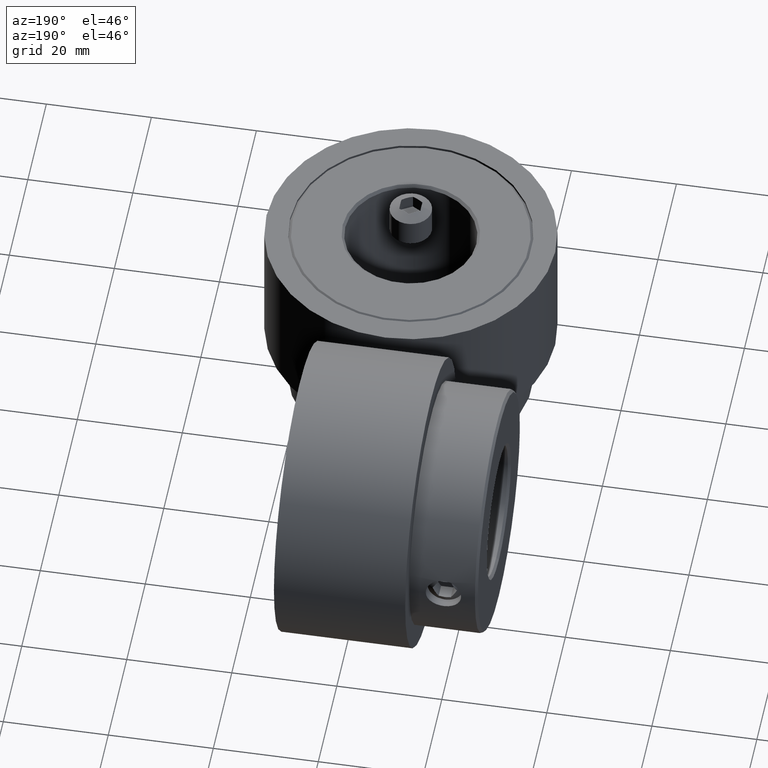
[diagram: clean part render]
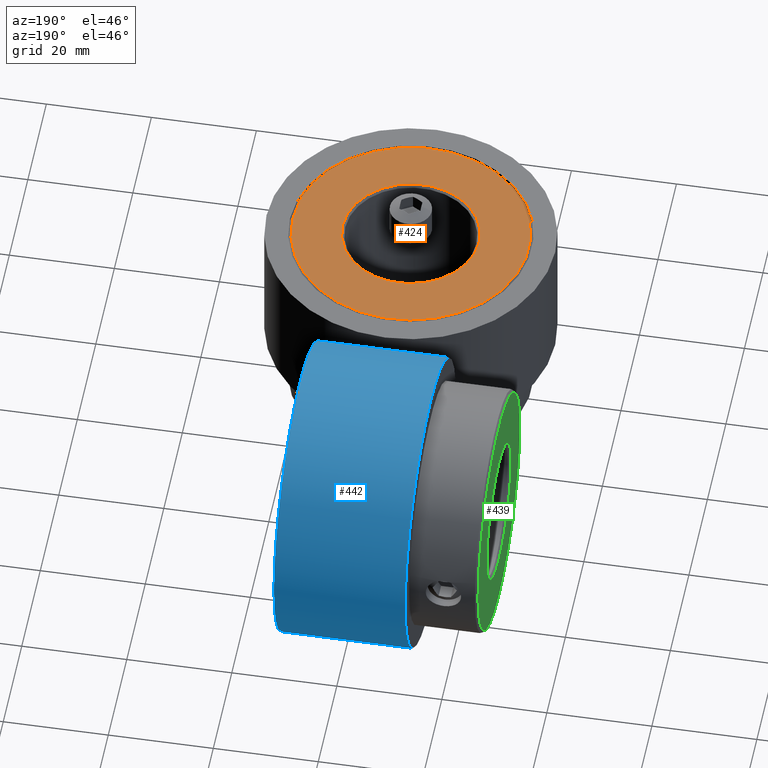
[diagram: same view with three faces highlighted in distinct colors, each labeled with its STEP entity id]
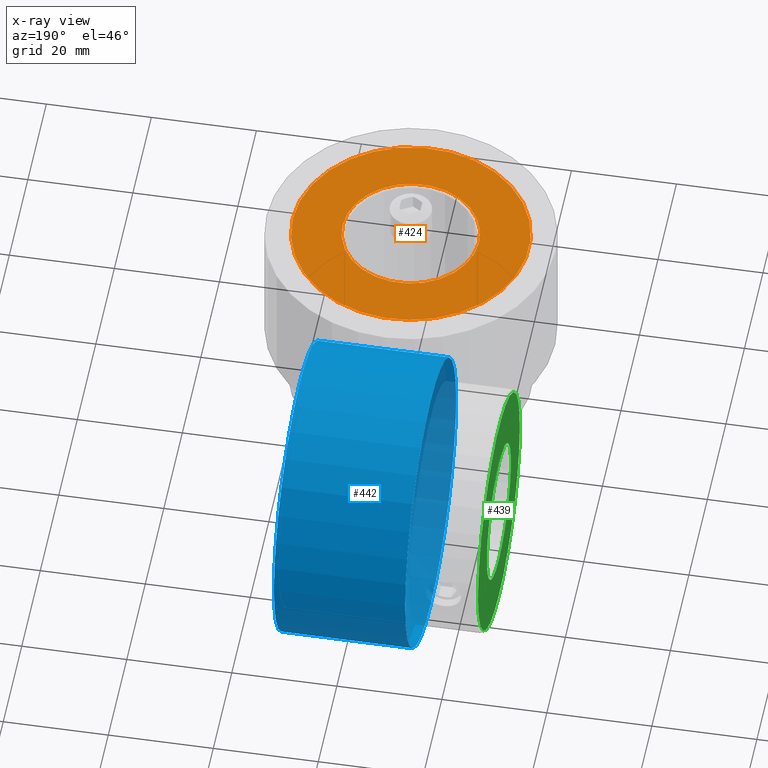
[diagram: x-ray of the same camera — body ghosted, the three highlighted faces saturated]
A machine part, auxiliary view with three faces highlighted in distinct colors.
The next image is the same camera in x-ray (body ghosted, the three faces saturated) — at least one of them is partly hidden behind the body in this view.
Their STEP definitions:

[orange] entity #424 — the highlighted planar face has unit normal (0, 0, 1).
#424 = ADVANCED_FACE( '', ( #523, #524 ), #525, .T. );
#523 = FACE_OUTER_BOUND( '', #705, .T. );
#524 = FACE_BOUND( '', #706, .T. );
#525 = PLANE( '', #707 );
#705 = EDGE_LOOP( '', ( #907 ) );
#706 = EDGE_LOOP( '', ( #908 ) );
#707 = AXIS2_PLACEMENT_3D( '', #909, #910, #911 );
#907 = ORIENTED_EDGE( '', *, *, #1261, .T. );
#908 = ORIENTED_EDGE( '', *, *, #1260, .T. );
#909 = CARTESIAN_POINT( '', ( 0.000000000000000, 0.000000000000000, 0.000000000000000 ) );
#910 = DIRECTION( '', ( 0.000000000000000, 0.000000000000000, 1.00000000000000 ) );
#911 = DIRECTION( '', ( 1.00000000000000, 0.000000000000000, 0.000000000000000 ) );
#1260 = EDGE_CURVE( '', #1373, #1373, #1374, .F. );
#1261 = EDGE_CURVE( '', #1375, #1375, #1376, .T. );
#1373 = VERTEX_POINT( '', #1809 );
#1374 = CIRCLE( '', #1810, 13.0000000000000 );
#1375 = VERTEX_POINT( '', #1811 );
#1376 = CIRCLE( '', #1812, 22.5000000000000 );
#1809 = CARTESIAN_POINT( '', ( 13.0000000000000, 0.000000000000000, 0.000000000000000 ) );
#1810 = AXIS2_PLACEMENT_3D( '', #2406, #2407, #2408 );
#1811 = CARTESIAN_POINT( '', ( 22.5000000000000, 0.000000000000000, 0.000000000000000 ) );
#1812 = AXIS2_PLACEMENT_3D( '', #2409, #2410, #2411 );
#2406 = CARTESIAN_POINT( '', ( 0.000000000000000, 0.000000000000000, 0.000000000000000 ) );
#2407 = DIRECTION( '', ( 0.000000000000000, 0.000000000000000, 1.00000000000000 ) );
#2408 = DIRECTION( '', ( 1.00000000000000, 0.000000000000000, -0.000000000000000 ) );
#2409 = CARTESIAN_POINT( '', ( 0.000000000000000, 0.000000000000000, 0.000000000000000 ) );
#2410 = DIRECTION( '', ( 0.000000000000000, 0.000000000000000, 1.00000000000000 ) );
#2411 = DIRECTION( '', ( 1.00000000000000, 0.000000000000000, -0.000000000000000 ) );

[blue] entity #442 — the highlighted cylindrical surface (bore or boss wall) has radius 27.5 mm, axis along (-1, -0, -0).
#442 = ADVANCED_FACE( '', ( #581, #582 ), #583, .T. );
#581 = FACE_OUTER_BOUND( '', #763, .T. );
#582 = FACE_OUTER_BOUND( '', #764, .T. );
#583 = CYLINDRICAL_SURFACE( '', #765, 27.5000000000000 );
#763 = EDGE_LOOP( '', ( #1001 ) );
#764 = EDGE_LOOP( '', ( #1002 ) );
#765 = AXIS2_PLACEMENT_3D( '', #1003, #1004, #1005 );
#1001 = ORIENTED_EDGE( '', *, *, #1281, .T. );
#1002 = ORIENTED_EDGE( '', *, *, #1282, .F. );
#1003 = CARTESIAN_POINT( '', ( -14.0000000000000, 58.0000000000000, -11.0000000000000 ) );
#1004 = DIRECTION( '', ( -1.00000000000000, -0.000000000000000, -6.12323399573677E-017 ) );
#1005 = DIRECTION( '', ( 6.12323399573677E-017, 0.000000000000000, -1.00000000000000 ) );
#1281 = EDGE_CURVE( '', #1415, #1415, #1416, .T. );
#1282 = EDGE_CURVE( '', #1417, #1417, #1418, .T. );
#1415 = VERTEX_POINT( '', #2107 );
#1416 = CIRCLE( '', #2108, 27.5000000000000 );
#1417 = VERTEX_POINT( '', #2109 );
#1418 = CIRCLE( '', #2110, 27.5000000000000 );
#2107 = CARTESIAN_POINT( '', ( -14.0000000000000, 58.0000000000000, -38.5000000000000 ) );
#2108 = AXIS2_PLACEMENT_3D( '', #2457, #2458, #2459 );
#2109 = CARTESIAN_POINT( '', ( 11.0000000000000, 58.0000000000000, -38.5000000000000 ) );
#2110 = AXIS2_PLACEMENT_3D( '', #2460, #2461, #2462 );
#2457 = CARTESIAN_POINT( '', ( -14.0000000000000, 58.0000000000000, -11.0000000000000 ) );
#2458 = DIRECTION( '', ( 1.00000000000000, 0.000000000000000, 6.12323399573677E-017 ) );
#2459 = DIRECTION( '', ( 6.12323399573677E-017, 0.000000000000000, -1.00000000000000 ) );
#2460 = CARTESIAN_POINT( '', ( 11.0000000000000, 58.0000000000000, -11.0000000000000 ) );
#2461 = DIRECTION( '', ( 1.00000000000000, 0.000000000000000, 6.12323399573677E-017 ) );
#2462 = DIRECTION( '', ( 6.12323399573677E-017, 0.000000000000000, -1.00000000000000 ) );

[green] entity #439 — the highlighted planar face has unit normal (1, 0, 0).
#439 = ADVANCED_FACE( '', ( #572, #573 ), #574, .F. );
#572 = FACE_OUTER_BOUND( '', #754, .T. );
#573 = FACE_BOUND( '', #755, .T. );
#574 = PLANE( '', #756 );
#754 = EDGE_LOOP( '', ( #986 ) );
#755 = EDGE_LOOP( '', ( #987 ) );
#756 = AXIS2_PLACEMENT_3D( '', #988, #989, #990 );
#986 = ORIENTED_EDGE( '', *, *, #1271, .T. );
#987 = ORIENTED_EDGE( '', *, *, #1280, .T. );
#988 = CARTESIAN_POINT( '', ( -27.0000000000000, 58.0000000000000, -11.0000000000000 ) );
#989 = DIRECTION( '', ( 1.00000000000000, 0.000000000000000, 6.12323399573677E-017 ) );
#990 = DIRECTION( '', ( 6.12323399573677E-017, 0.000000000000000, -1.00000000000000 ) );
#1271 = EDGE_CURVE( '', #1395, #1395, #1396, .F. );
#1280 = EDGE_CURVE( '', #1413, #1413, #1414, .T. );
#1395 = VERTEX_POINT( '', #1961 );
#1396 = CIRCLE( '', #1962, 22.6000000000000 );
#1413 = VERTEX_POINT( '', #2105 );
#1414 = CIRCLE( '', #2106, 13.0000000000000 );
#1961 = CARTESIAN_POINT( '', ( -27.0000000000000, 58.0000000000000, -33.6000000000000 ) );
#1962 = AXIS2_PLACEMENT_3D( '', #2433, #2434, #2435 );
#2105 = CARTESIAN_POINT( '', ( -27.0000000000000, 58.0000000000000, -24.0000000000000 ) );
#2106 = AXIS2_PLACEMENT_3D( '', #2454, #2455, #2456 );
#2433 = CARTESIAN_POINT( '', ( -27.0000000000000, 58.0000000000000, -11.0000000000000 ) );
#2434 = DIRECTION( '', ( 1.00000000000000, 0.000000000000000, 6.12323399573677E-017 ) );
#2435 = DIRECTION( '', ( 6.12323399573677E-017, 0.000000000000000, -1.00000000000000 ) );
#2454 = CARTESIAN_POINT( '', ( -27.0000000000000, 58.0000000000000, -11.0000000000000 ) );
#2455 = DIRECTION( '', ( 1.00000000000000, 0.000000000000000, 6.12323399573677E-017 ) );
#2456 = DIRECTION( '', ( 6.12323399573677E-017, 0.000000000000000, -1.00000000000000 ) );